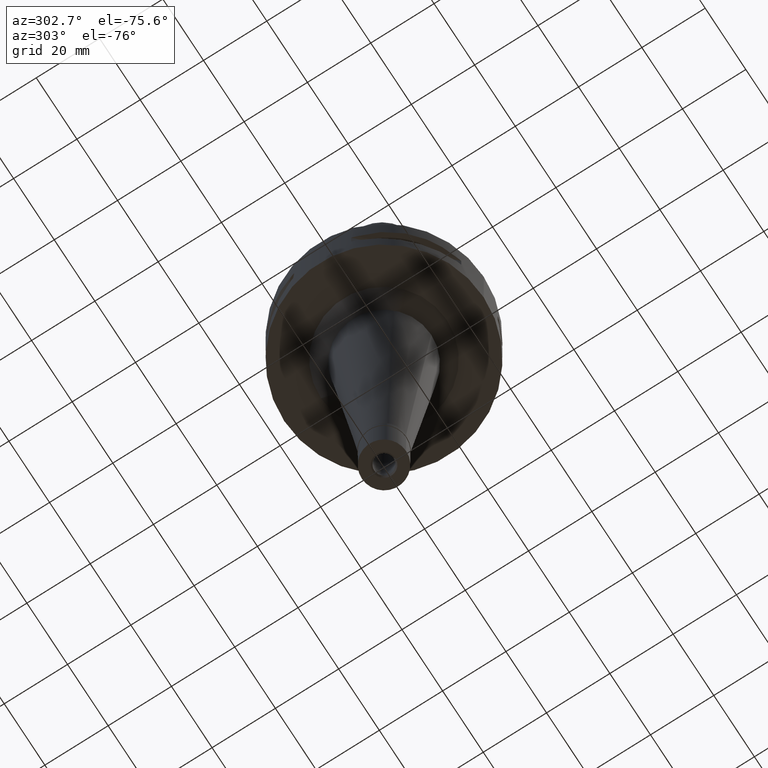
[diagram: clean part render]
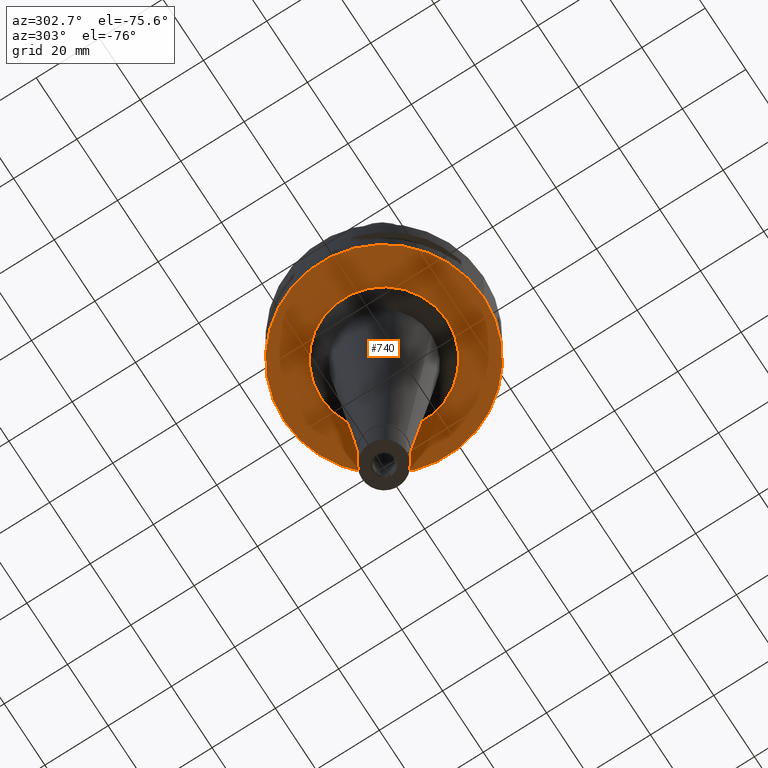
[diagram: same view with one face highlighted and labeled with its STEP entity id]
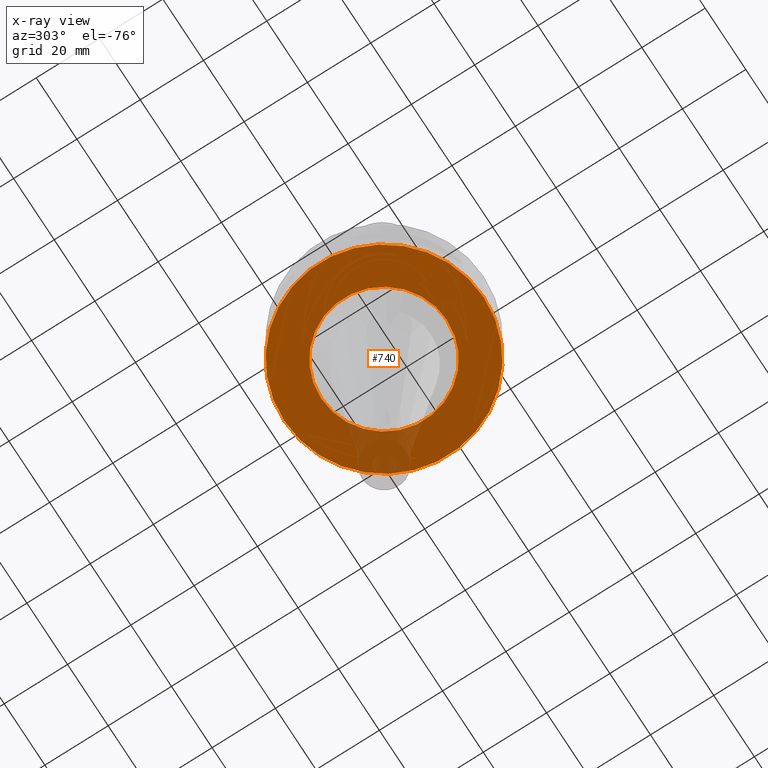
[diagram: x-ray of the same camera — body ghosted, the highlighted face saturated]
A machine part, auxiliary view. The second image highlights one B-rep face of the part: STEP entity #740.
The next image is the same camera in x-ray: the body ghosted, the highlighted face saturated — about 10% of this face is hidden behind the body in this view.
In plain terms, the highlighted planar face has unit normal (0, 0, -1).
Its self-contained STEP definition (entity closure, byte-faithful):
#535 = CARTESIAN_POINT ( 'NONE',  ( 0.0000000000000000000, -19.90022631639000039, -22.00000000000000000 ) ) ;
#725 = CIRCLE ( 'NONE', #2080, 31.50000000000000000 ) ;
#736 = PLANE ( 'NONE',  #1150 ) ;
#740 = ADVANCED_FACE ( 'NONE', ( #4075, #3336 ), #736, .T. ) ;
#782 = VERTEX_POINT ( 'NONE', #3808 ) ;
#995 = DIRECTION ( 'NONE',  ( 0.0000000000000000000, 0.0000000000000000000, -1.000000000000000000 ) ) ;
#1039 = DIRECTION ( 'NONE',  ( 0.0000000000000000000, -1.000000000000000000, 0.0000000000000000000 ) ) ;
#1135 = ORIENTED_EDGE ( 'NONE', *, *, #3284, .F. ) ;
#1136 = CIRCLE ( 'NONE', #3187, 19.90022631639000039 ) ;
#1150 = AXIS2_PLACEMENT_3D ( 'NONE', #2206, #4027, #1039 ) ;
#1289 = AXIS2_PLACEMENT_3D ( 'NONE', #4204, #4600, #3855 ) ;
#1314 = CARTESIAN_POINT ( 'NONE',  ( 0.0000000000000000000, 1.304861164492000018E-14, -22.00000000000000000 ) ) ;
#1336 = DIRECTION ( 'NONE',  ( 0.0000000000000000000, 0.0000000000000000000, 1.000000000000000000 ) ) ;
#1659 = ORIENTED_EDGE ( 'NONE', *, *, #4254, .F. ) ;
#1681 = CARTESIAN_POINT ( 'NONE',  ( 0.0000000000000000000, 19.90022631639000039, -22.00000000000000000 ) ) ;
#1710 = DIRECTION ( 'NONE',  ( 0.0000000000000000000, -1.000000000000000000, 0.0000000000000000000 ) ) ;
#1980 = EDGE_LOOP ( 'NONE', ( #2701, #4353 ) ) ;
#2080 = AXIS2_PLACEMENT_3D ( 'NONE', #1314, #4321, #1710 ) ;
#2206 = CARTESIAN_POINT ( 'NONE',  ( 0.0000000000000000000, 0.0000000000000000000, -22.00000000000000000 ) ) ;
#2430 = CARTESIAN_POINT ( 'NONE',  ( 0.0000000000000000000, 1.304861164492000018E-14, -22.00000000000000000 ) ) ;
#2435 = EDGE_LOOP ( 'NONE', ( #1135, #1659 ) ) ;
#2701 = ORIENTED_EDGE ( 'NONE', *, *, #3723, .F. ) ;
#2711 = CIRCLE ( 'NONE', #3183, 31.50000000000000000 ) ;
#2788 = CIRCLE ( 'NONE', #1289, 19.90022631639000039 ) ;
#2871 = CARTESIAN_POINT ( 'NONE',  ( 0.0000000000000000000, 0.0000000000000000000, -22.00000000000000000 ) ) ;
#3088 = CARTESIAN_POINT ( 'NONE',  ( 0.0000000000000000000, 31.50000000000000000, -22.00000000000000000 ) ) ;
#3183 = AXIS2_PLACEMENT_3D ( 'NONE', #2430, #1336, #4248 ) ;
#3187 = AXIS2_PLACEMENT_3D ( 'NONE', #2871, #995, #3547 ) ;
#3274 = VERTEX_POINT ( 'NONE', #3088 ) ;
#3284 = EDGE_CURVE ( 'NONE', #3699, #4895, #2788, .T. ) ;
#3336 = FACE_BOUND ( 'NONE', #2435, .T. ) ;
#3547 = DIRECTION ( 'NONE',  ( 0.0000000000000000000, -1.000000000000000000, 0.0000000000000000000 ) ) ;
#3699 = VERTEX_POINT ( 'NONE', #1681 ) ;
#3716 = EDGE_CURVE ( 'NONE', #782, #3274, #725, .T. ) ;
#3723 = EDGE_CURVE ( 'NONE', #3274, #782, #2711, .T. ) ;
#3808 = CARTESIAN_POINT ( 'NONE',  ( 0.0000000000000000000, -31.50000000000000000, -22.00000000000000000 ) ) ;
#3855 = DIRECTION ( 'NONE',  ( 0.0000000000000000000, 1.000000000000000000, 0.0000000000000000000 ) ) ;
#4027 = DIRECTION ( 'NONE',  ( 0.0000000000000000000, 0.0000000000000000000, -1.000000000000000000 ) ) ;
#4075 = FACE_OUTER_BOUND ( 'NONE', #1980, .T. ) ;
#4204 = CARTESIAN_POINT ( 'NONE',  ( 0.0000000000000000000, 0.0000000000000000000, -22.00000000000000000 ) ) ;
#4248 = DIRECTION ( 'NONE',  ( 0.0000000000000000000, 1.000000000000000000, 0.0000000000000000000 ) ) ;
#4254 = EDGE_CURVE ( 'NONE', #4895, #3699, #1136, .T. ) ;
#4321 = DIRECTION ( 'NONE',  ( 0.0000000000000000000, 0.0000000000000000000, 1.000000000000000000 ) ) ;
#4353 = ORIENTED_EDGE ( 'NONE', *, *, #3716, .F. ) ;
#4600 = DIRECTION ( 'NONE',  ( 0.0000000000000000000, 0.0000000000000000000, -1.000000000000000000 ) ) ;
#4895 = VERTEX_POINT ( 'NONE', #535 ) ;